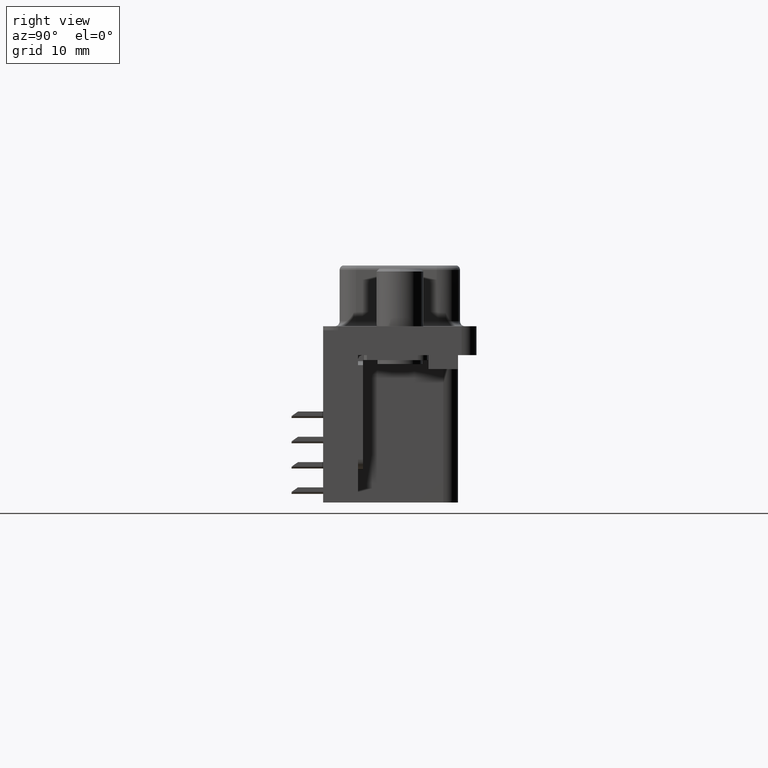
[diagram: clean part render]
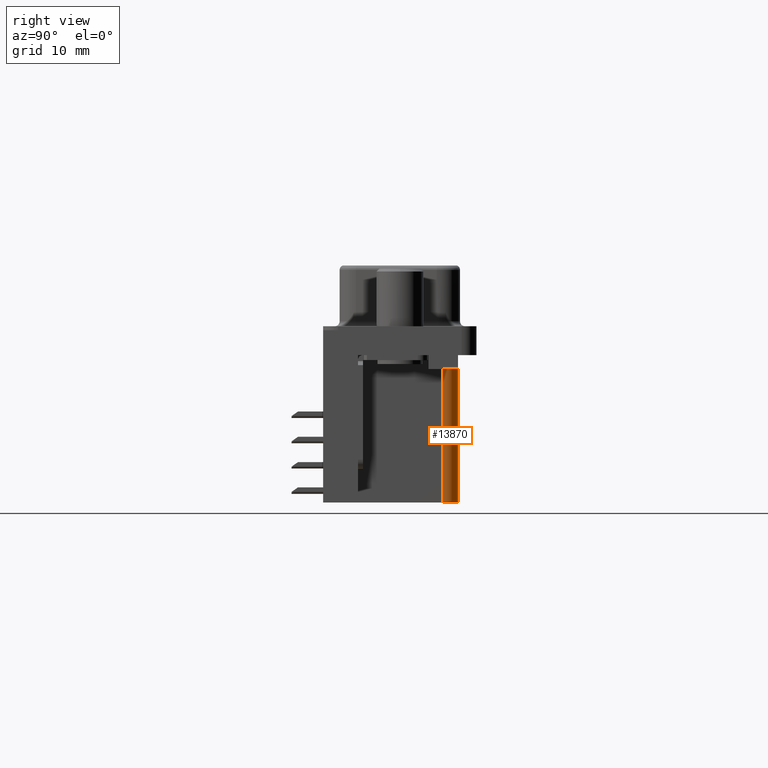
[diagram: same view with one face highlighted and labeled with its STEP entity id]
A machine part, right view. The second image highlights one B-rep face of the part: STEP entity #13870.
In plain terms, the highlighted cylindrical surface (edge-blend (fillet) strip) has radius 1.5 mm, axis along (0, 0, 1).
Its self-contained STEP definition (entity closure, byte-faithful):
#1087 = CARTESIAN_POINT ( 'NONE',  ( 55.84999999999988800, 5.849999999999994300, -3.900000000000000800 ) ) ;
#1335 = VERTEX_POINT ( 'NONE', #34525 ) ;
#2947 = ORIENTED_EDGE ( 'NONE', *, *, #32590, .F. ) ;
#3258 = VECTOR ( 'NONE', #24043, 1000.000000000000000 ) ;
#3910 = VERTEX_POINT ( 'NONE', #1087 ) ;
#4033 = AXIS2_PLACEMENT_3D ( 'NONE', #9812, #32196, #13047 ) ;
#4056 = CARTESIAN_POINT ( 'NONE',  ( 55.84999999999988800, 5.849999999999993400, -17.30000000000000100 ) ) ;
#6856 = CARTESIAN_POINT ( 'NONE',  ( 55.84999999999988800, 4.349999999999992500, -17.30000000000000100 ) ) ;
#6867 = EDGE_CURVE ( 'NONE', #3910, #1335, #31571, .T. ) ;
#9812 = CARTESIAN_POINT ( 'NONE',  ( 55.84999999999988800, 4.349999999999992500, -3.900000000000000800 ) ) ;
#10055 = DIRECTION ( 'NONE',  ( -1.000000000000000000, 0.0000000000000000000, 0.0000000000000000000 ) ) ;
#10955 = VERTEX_POINT ( 'NONE', #4056 ) ;
#11053 = ORIENTED_EDGE ( 'NONE', *, *, #38787, .T. ) ;
#12532 = CARTESIAN_POINT ( 'NONE',  ( 57.34999999999988800, 4.349999999999992500, -17.30000000000000100 ) ) ;
#12914 = ORIENTED_EDGE ( 'NONE', *, *, #6867, .T. ) ;
#13047 = DIRECTION ( 'NONE',  ( 1.000000000000000000, 0.0000000000000000000, 0.0000000000000000000 ) ) ;
#13870 = ADVANCED_FACE ( 'NONE', ( #22088 ), #28595, .T. ) ;
#19327 = DIRECTION ( 'NONE',  ( 1.000000000000000000, 0.0000000000000000000, 0.0000000000000000000 ) ) ;
#19474 = DIRECTION ( 'NONE',  ( -0.0000000000000000000, -0.0000000000000000000, 1.000000000000000000 ) ) ;
#19607 = LINE ( 'NONE', #23432, #27117 ) ;
#22088 = FACE_OUTER_BOUND ( 'NONE', #36079, .T. ) ;
#22198 = CIRCLE ( 'NONE', #28921, 1.500000000000001300 ) ;
#22714 = CARTESIAN_POINT ( 'NONE',  ( 55.84999999999988800, 4.349999999999992500, -17.30000000000000100 ) ) ;
#23315 = AXIS2_PLACEMENT_3D ( 'NONE', #22714, #19474, #19327 ) ;
#23432 = CARTESIAN_POINT ( 'NONE',  ( 57.34999999999988800, 4.349999999999992500, -17.30000000000000100 ) ) ;
#24043 = DIRECTION ( 'NONE',  ( -0.0000000000000000000, -0.0000000000000000000, 1.000000000000000000 ) ) ;
#24045 = EDGE_CURVE ( 'NONE', #10955, #41063, #22198, .T. ) ;
#24825 = ORIENTED_EDGE ( 'NONE', *, *, #24045, .F. ) ;
#27117 = VECTOR ( 'NONE', #29735, 1000.000000000000000 ) ;
#28595 = CYLINDRICAL_SURFACE ( 'NONE', #23315, 1.500000000000001300 ) ;
#28921 = AXIS2_PLACEMENT_3D ( 'NONE', #6856, #29264, #10055 ) ;
#29264 = DIRECTION ( 'NONE',  ( 0.0000000000000000000, 0.0000000000000000000, -1.000000000000000000 ) ) ;
#29735 = DIRECTION ( 'NONE',  ( -0.0000000000000000000, -0.0000000000000000000, 1.000000000000000000 ) ) ;
#31571 = CIRCLE ( 'NONE', #4033, 1.500000000000001300 ) ;
#32196 = DIRECTION ( 'NONE',  ( 0.0000000000000000000, -0.0000000000000000000, -1.000000000000000000 ) ) ;
#32590 = EDGE_CURVE ( 'NONE', #41063, #1335, #19607, .T. ) ;
#34525 = CARTESIAN_POINT ( 'NONE',  ( 57.34999999999988800, 4.349999999999992500, -3.899999999999999900 ) ) ;
#36079 = EDGE_LOOP ( 'NONE', ( #11053, #12914, #2947, #24825 ) ) ;
#37219 = LINE ( 'NONE', #40006, #3258 ) ;
#38787 = EDGE_CURVE ( 'NONE', #10955, #3910, #37219, .T. ) ;
#40006 = CARTESIAN_POINT ( 'NONE',  ( 55.84999999999988800, 5.849999999999993400, -17.30000000000000100 ) ) ;
#41063 = VERTEX_POINT ( 'NONE', #12532 ) ;